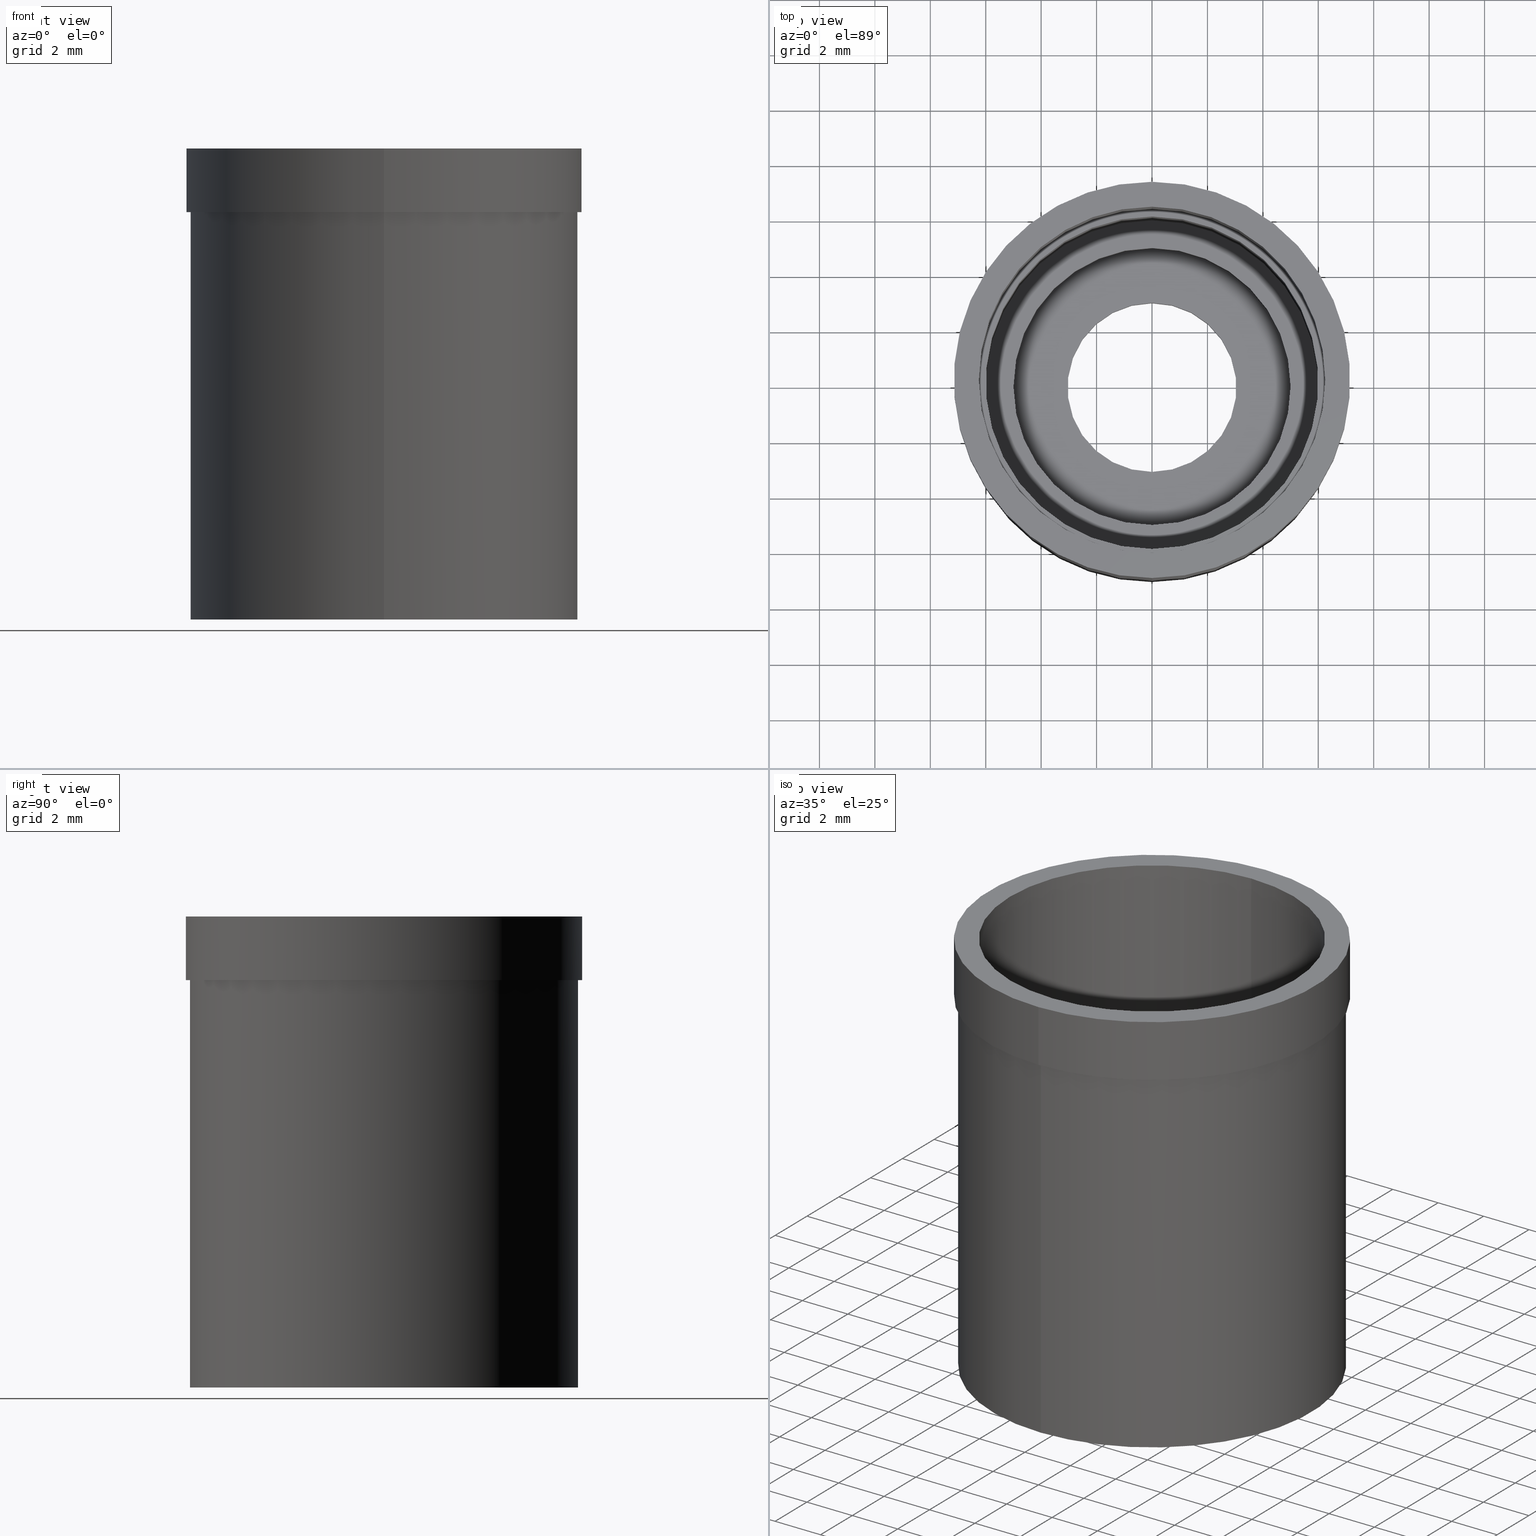
[diagram: canonical four-view strip — front | top / right | iso, engineering-drawing reading convention]
A machine part, canonical four-view strip (front | top / right | iso — engineering-drawing reading convention). The complete STEP part file that produces these views, byte-faithful:
ISO-10303-21;
HEADER;
FILE_DESCRIPTION((''),'2;1');
FILE_NAME('MGN6S','2017-10-18T',('ykawabe'),(''),
'CREO PARAMETRIC BY PTC INC, 2016380','CREO PARAMETRIC BY PTC INC, 2016380','');
FILE_SCHEMA(('AUTOMOTIVE_DESIGN { 1 0 10303 214 1 1 1 1 }'));
ENDSEC;
DATA;
#17=DIRECTION('',(0.E0,0.E0,1.E0));
#18=VECTOR('',#17,6.E0);
#19=CARTESIAN_POINT('',(0.E0,-6.25E0,-6.E0));
#20=LINE('',#19,#18);
#21=DRAUGHTING_PRE_DEFINED_CURVE_FONT('continuous');
#22=CURVE_STYLE('',#21,POSITIVE_LENGTH_MEASURE(2.E-2),#3);
#23=PRESENTATION_STYLE_ASSIGNMENT((#22));
#24=STYLED_ITEM('',(#23),#20);
#25=DIRECTION('',(0.E0,0.E0,1.E0));
#26=VECTOR('',#25,6.E0);
#27=CARTESIAN_POINT('',(0.E0,6.25E0,-6.E0));
#28=LINE('',#27,#26);
#29=CURVE_STYLE('',#21,POSITIVE_LENGTH_MEASURE(2.E-2),#3);
#30=PRESENTATION_STYLE_ASSIGNMENT((#29));
#31=STYLED_ITEM('',(#30),#28);
#32=CARTESIAN_POINT('',(0.E0,0.E0,1.776356839400E-14));
#33=DIRECTION('',(0.E0,0.E0,-1.E0));
#34=DIRECTION('',(0.E0,-1.E0,0.E0));
#35=AXIS2_PLACEMENT_3D('',#32,#33,#34);
#37=CURVE_STYLE('',#21,POSITIVE_LENGTH_MEASURE(2.E-2),#3);
#38=PRESENTATION_STYLE_ASSIGNMENT((#37));
#39=STYLED_ITEM('',(#38),#36);
#40=CARTESIAN_POINT('',(0.E0,0.E0,1.776356839400E-14));
#41=DIRECTION('',(0.E0,0.E0,-1.E0));
#42=DIRECTION('',(0.E0,1.E0,0.E0));
#43=AXIS2_PLACEMENT_3D('',#40,#41,#42);
#45=CURVE_STYLE('',#21,POSITIVE_LENGTH_MEASURE(2.E-2),#3);
#46=PRESENTATION_STYLE_ASSIGNMENT((#45));
#47=STYLED_ITEM('',(#46),#44);
#48=CARTESIAN_POINT('',(0.E0,0.E0,1.776356839400E-14));
#49=DIRECTION('',(0.E0,0.E0,1.E0));
#50=DIRECTION('',(0.E0,-1.E0,0.E0));
#51=AXIS2_PLACEMENT_3D('',#48,#49,#50);
#53=CURVE_STYLE('',#21,POSITIVE_LENGTH_MEASURE(2.E-2),#3);
#54=PRESENTATION_STYLE_ASSIGNMENT((#53));
#55=STYLED_ITEM('',(#54),#52);
#56=CARTESIAN_POINT('',(0.E0,0.E0,1.776356839400E-14));
#57=DIRECTION('',(0.E0,0.E0,1.E0));
#58=DIRECTION('',(0.E0,1.E0,0.E0));
#59=AXIS2_PLACEMENT_3D('',#56,#57,#58);
#61=CURVE_STYLE('',#21,POSITIVE_LENGTH_MEASURE(2.E-2),#3);
#62=PRESENTATION_STYLE_ASSIGNMENT((#61));
#63=STYLED_ITEM('',(#62),#60);
#64=DIRECTION('',(0.E0,0.E0,-1.E0));
#65=VECTOR('',#64,2.3E0);
#66=CARTESIAN_POINT('',(0.E0,-7.15E0,0.E0));
#67=LINE('',#66,#65);
#68=CURVE_STYLE('',#21,POSITIVE_LENGTH_MEASURE(2.E-2),#3);
#69=PRESENTATION_STYLE_ASSIGNMENT((#68));
#70=STYLED_ITEM('',(#69),#67);
#71=DIRECTION('',(0.E0,0.E0,-1.E0));
#72=VECTOR('',#71,2.3E0);
#73=CARTESIAN_POINT('',(0.E0,7.15E0,0.E0));
#74=LINE('',#73,#72);
#75=CURVE_STYLE('',#21,POSITIVE_LENGTH_MEASURE(2.E-2),#3);
#76=PRESENTATION_STYLE_ASSIGNMENT((#75));
#77=STYLED_ITEM('',(#76),#74);
#78=CARTESIAN_POINT('',(0.E0,0.E0,-2.3E0));
#79=DIRECTION('',(0.E0,0.E0,1.E0));
#80=DIRECTION('',(0.E0,-1.E0,0.E0));
#81=AXIS2_PLACEMENT_3D('',#78,#79,#80);
#83=CURVE_STYLE('',#21,POSITIVE_LENGTH_MEASURE(2.E-2),#3);
#84=PRESENTATION_STYLE_ASSIGNMENT((#83));
#85=STYLED_ITEM('',(#84),#82);
#86=CARTESIAN_POINT('',(0.E0,0.E0,-2.3E0));
#87=DIRECTION('',(0.E0,0.E0,1.E0));
#88=DIRECTION('',(0.E0,1.E0,0.E0));
#89=AXIS2_PLACEMENT_3D('',#86,#87,#88);
#91=CURVE_STYLE('',#21,POSITIVE_LENGTH_MEASURE(2.E-2),#3);
#92=PRESENTATION_STYLE_ASSIGNMENT((#91));
#93=STYLED_ITEM('',(#92),#90);
#94=CARTESIAN_POINT('',(0.E0,0.E0,-2.3E0));
#95=DIRECTION('',(0.E0,0.E0,-1.E0));
#96=DIRECTION('',(0.E0,-1.E0,0.E0));
#97=AXIS2_PLACEMENT_3D('',#94,#95,#96);
#99=CURVE_STYLE('',#21,POSITIVE_LENGTH_MEASURE(2.E-2),#3);
#100=PRESENTATION_STYLE_ASSIGNMENT((#99));
#101=STYLED_ITEM('',(#100),#98);
#102=CARTESIAN_POINT('',(0.E0,0.E0,-2.3E0));
#103=DIRECTION('',(0.E0,0.E0,-1.E0));
#104=DIRECTION('',(0.E0,1.E0,0.E0));
#105=AXIS2_PLACEMENT_3D('',#102,#103,#104);
#107=CURVE_STYLE('',#21,POSITIVE_LENGTH_MEASURE(2.E-2),#3);
#108=PRESENTATION_STYLE_ASSIGNMENT((#107));
#109=STYLED_ITEM('',(#108),#106);
#110=DIRECTION('',(0.E0,0.E0,-1.E0));
#111=VECTOR('',#110,1.47E1);
#112=CARTESIAN_POINT('',(0.E0,-7.E0,-2.3E0));
#113=LINE('',#112,#111);
#114=CURVE_STYLE('',#21,POSITIVE_LENGTH_MEASURE(2.E-2),#3);
#115=PRESENTATION_STYLE_ASSIGNMENT((#114));
#116=STYLED_ITEM('',(#115),#113);
#117=DIRECTION('',(0.E0,0.E0,-1.E0));
#118=VECTOR('',#117,1.47E1);
#119=CARTESIAN_POINT('',(0.E0,7.E0,-2.3E0));
#120=LINE('',#119,#118);
#121=CURVE_STYLE('',#21,POSITIVE_LENGTH_MEASURE(2.E-2),#3);
#122=PRESENTATION_STYLE_ASSIGNMENT((#121));
#123=STYLED_ITEM('',(#122),#120);
#124=CARTESIAN_POINT('',(0.E0,0.E0,-1.7E1));
#125=DIRECTION('',(0.E0,0.E0,1.E0));
#126=DIRECTION('',(0.E0,-1.E0,0.E0));
#127=AXIS2_PLACEMENT_3D('',#124,#125,#126);
#129=CURVE_STYLE('',#21,POSITIVE_LENGTH_MEASURE(2.E-2),#3);
#130=PRESENTATION_STYLE_ASSIGNMENT((#129));
#131=STYLED_ITEM('',(#130),#128);
#132=CARTESIAN_POINT('',(0.E0,0.E0,-1.7E1));
#133=DIRECTION('',(0.E0,0.E0,1.E0));
#134=DIRECTION('',(0.E0,1.E0,0.E0));
#135=AXIS2_PLACEMENT_3D('',#132,#133,#134);
#137=CURVE_STYLE('',#21,POSITIVE_LENGTH_MEASURE(2.E-2),#3);
#138=PRESENTATION_STYLE_ASSIGNMENT((#137));
#139=STYLED_ITEM('',(#138),#136);
#140=CARTESIAN_POINT('',(0.E0,0.E0,-1.7E1));
#141=DIRECTION('',(0.E0,0.E0,-1.E0));
#142=DIRECTION('',(0.E0,-1.E0,0.E0));
#143=AXIS2_PLACEMENT_3D('',#140,#141,#142);
#145=CURVE_STYLE('',#21,POSITIVE_LENGTH_MEASURE(2.E-2),#3);
#146=PRESENTATION_STYLE_ASSIGNMENT((#145));
#147=STYLED_ITEM('',(#146),#144);
#148=CARTESIAN_POINT('',(0.E0,0.E0,-1.7E1));
#149=DIRECTION('',(0.E0,0.E0,-1.E0));
#150=DIRECTION('',(0.E0,1.E0,0.E0));
#151=AXIS2_PLACEMENT_3D('',#148,#149,#150);
#153=CURVE_STYLE('',#21,POSITIVE_LENGTH_MEASURE(2.E-2),#3);
#154=PRESENTATION_STYLE_ASSIGNMENT((#153));
#155=STYLED_ITEM('',(#154),#152);
#156=DIRECTION('',(0.E0,7.071067811865E-1,7.071067811865E-1));
#157=VECTOR('',#156,7.071067811865E-1);
#158=CARTESIAN_POINT('',(0.E0,-3.55E0,-1.7E1));
#159=LINE('',#158,#157);
#160=CURVE_STYLE('',#21,POSITIVE_LENGTH_MEASURE(2.E-2),#3);
#161=PRESENTATION_STYLE_ASSIGNMENT((#160));
#162=STYLED_ITEM('',(#161),#159);
#163=CARTESIAN_POINT('',(0.E0,0.E0,-1.65E1));
#164=DIRECTION('',(0.E0,0.E0,-1.E0));
#165=DIRECTION('',(0.E0,-1.E0,0.E0));
#166=AXIS2_PLACEMENT_3D('',#163,#164,#165);
#168=CURVE_STYLE('',#21,POSITIVE_LENGTH_MEASURE(2.E-2),#3);
#169=PRESENTATION_STYLE_ASSIGNMENT((#168));
#170=STYLED_ITEM('',(#169),#167);
#171=DIRECTION('',(0.E0,-7.071067811865E-1,7.071067811865E-1));
#172=VECTOR('',#171,7.071067811865E-1);
#173=CARTESIAN_POINT('',(0.E0,3.55E0,-1.7E1));
#174=LINE('',#173,#172);
#175=CURVE_STYLE('',#21,POSITIVE_LENGTH_MEASURE(2.E-2),#3);
#176=PRESENTATION_STYLE_ASSIGNMENT((#175));
#177=STYLED_ITEM('',(#176),#174);
#178=CARTESIAN_POINT('',(0.E0,0.E0,-1.65E1));
#179=DIRECTION('',(0.E0,0.E0,-1.E0));
#180=DIRECTION('',(0.E0,1.E0,0.E0));
#181=AXIS2_PLACEMENT_3D('',#178,#179,#180);
#183=CURVE_STYLE('',#21,POSITIVE_LENGTH_MEASURE(2.E-2),#3);
#184=PRESENTATION_STYLE_ASSIGNMENT((#183));
#185=STYLED_ITEM('',(#184),#182);
#186=DIRECTION('',(0.E0,0.E0,1.E0));
#187=VECTOR('',#186,1.E0);
#188=CARTESIAN_POINT('',(0.E0,3.05E0,-1.65E1));
#189=LINE('',#188,#187);
#190=CURVE_STYLE('',#21,POSITIVE_LENGTH_MEASURE(2.E-2),#3);
#191=PRESENTATION_STYLE_ASSIGNMENT((#190));
#192=STYLED_ITEM('',(#191),#189);
#193=DIRECTION('',(0.E0,0.E0,1.E0));
#194=VECTOR('',#193,1.E0);
#195=CARTESIAN_POINT('',(0.E0,-3.05E0,-1.65E1));
#196=LINE('',#195,#194);
#197=CURVE_STYLE('',#21,POSITIVE_LENGTH_MEASURE(2.E-2),#3);
#198=PRESENTATION_STYLE_ASSIGNMENT((#197));
#199=STYLED_ITEM('',(#198),#196);
#200=CARTESIAN_POINT('',(0.E0,0.E0,-1.55E1));
#201=DIRECTION('',(0.E0,0.E0,-1.E0));
#202=DIRECTION('',(0.E0,-1.E0,0.E0));
#203=AXIS2_PLACEMENT_3D('',#200,#201,#202);
#205=CURVE_STYLE('',#21,POSITIVE_LENGTH_MEASURE(2.E-2),#3);
#206=PRESENTATION_STYLE_ASSIGNMENT((#205));
#207=STYLED_ITEM('',(#206),#204);
#208=CARTESIAN_POINT('',(0.E0,0.E0,-1.55E1));
#209=DIRECTION('',(0.E0,0.E0,-1.E0));
#210=DIRECTION('',(0.E0,1.E0,0.E0));
#211=AXIS2_PLACEMENT_3D('',#208,#209,#210);
#213=CURVE_STYLE('',#21,POSITIVE_LENGTH_MEASURE(2.E-2),#3);
#214=PRESENTATION_STYLE_ASSIGNMENT((#213));
#215=STYLED_ITEM('',(#214),#212);
#216=CARTESIAN_POINT('',(0.E0,0.E0,-1.55E1));
#217=DIRECTION('',(0.E0,0.E0,1.E0));
#218=DIRECTION('',(0.E0,-1.E0,0.E0));
#219=AXIS2_PLACEMENT_3D('',#216,#217,#218);
#221=CURVE_STYLE('',#21,POSITIVE_LENGTH_MEASURE(2.E-2),#3);
#222=PRESENTATION_STYLE_ASSIGNMENT((#221));
#223=STYLED_ITEM('',(#222),#220);
#224=CARTESIAN_POINT('',(0.E0,0.E0,-1.55E1));
#225=DIRECTION('',(0.E0,0.E0,1.E0));
#226=DIRECTION('',(0.E0,1.E0,0.E0));
#227=AXIS2_PLACEMENT_3D('',#224,#225,#226);
#229=CURVE_STYLE('',#21,POSITIVE_LENGTH_MEASURE(2.E-2),#3);
#230=PRESENTATION_STYLE_ASSIGNMENT((#229));
#231=STYLED_ITEM('',(#230),#228);
#232=DIRECTION('',(0.E0,0.E0,1.E0));
#233=VECTOR('',#232,1.8E0);
#234=CARTESIAN_POINT('',(0.E0,-5.E0,-1.55E1));
#235=LINE('',#234,#233);
#236=CURVE_STYLE('',#21,POSITIVE_LENGTH_MEASURE(2.E-2),#3);
#237=PRESENTATION_STYLE_ASSIGNMENT((#236));
#238=STYLED_ITEM('',(#237),#235);
#239=DIRECTION('',(0.E0,0.E0,1.E0));
#240=VECTOR('',#239,1.8E0);
#241=CARTESIAN_POINT('',(0.E0,5.E0,-1.55E1));
#242=LINE('',#241,#240);
#243=CURVE_STYLE('',#21,POSITIVE_LENGTH_MEASURE(2.E-2),#3);
#244=PRESENTATION_STYLE_ASSIGNMENT((#243));
#245=STYLED_ITEM('',(#244),#242);
#246=CARTESIAN_POINT('',(0.E0,0.E0,-1.37E1));
#247=DIRECTION('',(0.E0,0.E0,-1.E0));
#248=DIRECTION('',(0.E0,-1.E0,0.E0));
#249=AXIS2_PLACEMENT_3D('',#246,#247,#248);
#251=CURVE_STYLE('',#21,POSITIVE_LENGTH_MEASURE(2.E-2),#3);
#252=PRESENTATION_STYLE_ASSIGNMENT((#251));
#253=STYLED_ITEM('',(#252),#250);
#254=CARTESIAN_POINT('',(0.E0,0.E0,-1.37E1));
#255=DIRECTION('',(0.E0,0.E0,-1.E0));
#256=DIRECTION('',(0.E0,1.E0,0.E0));
#257=AXIS2_PLACEMENT_3D('',#254,#255,#256);
#259=CURVE_STYLE('',#21,POSITIVE_LENGTH_MEASURE(2.E-2),#3);
#260=PRESENTATION_STYLE_ASSIGNMENT((#259));
#261=STYLED_ITEM('',(#260),#258);
#262=CARTESIAN_POINT('',(0.E0,0.E0,-1.37E1));
#263=DIRECTION('',(0.E0,0.E0,1.E0));
#264=DIRECTION('',(0.E0,-1.E0,0.E0));
#265=AXIS2_PLACEMENT_3D('',#262,#263,#264);
#267=CURVE_STYLE('',#21,POSITIVE_LENGTH_MEASURE(2.E-2),#3);
#268=PRESENTATION_STYLE_ASSIGNMENT((#267));
#269=STYLED_ITEM('',(#268),#266);
#270=CARTESIAN_POINT('',(0.E0,0.E0,-1.37E1));
#271=DIRECTION('',(0.E0,0.E0,1.E0));
#272=DIRECTION('',(0.E0,1.E0,0.E0));
#273=AXIS2_PLACEMENT_3D('',#270,#271,#272);
#275=CURVE_STYLE('',#21,POSITIVE_LENGTH_MEASURE(2.E-2),#3);
#276=PRESENTATION_STYLE_ASSIGNMENT((#275));
#277=STYLED_ITEM('',(#276),#274);
#278=DIRECTION('',(0.E0,0.E0,1.E0));
#279=VECTOR('',#278,7.7E0);
#280=CARTESIAN_POINT('',(0.E0,-6.E0,-1.37E1));
#281=LINE('',#280,#279);
#282=CURVE_STYLE('',#21,POSITIVE_LENGTH_MEASURE(2.E-2),#3);
#283=PRESENTATION_STYLE_ASSIGNMENT((#282));
#284=STYLED_ITEM('',(#283),#281);
#285=DIRECTION('',(0.E0,0.E0,1.E0));
#286=VECTOR('',#285,7.7E0);
#287=CARTESIAN_POINT('',(0.E0,6.E0,-1.37E1));
#288=LINE('',#287,#286);
#289=CURVE_STYLE('',#21,POSITIVE_LENGTH_MEASURE(2.E-2),#3);
#290=PRESENTATION_STYLE_ASSIGNMENT((#289));
#291=STYLED_ITEM('',(#290),#288);
#292=CARTESIAN_POINT('',(0.E0,0.E0,-6.E0));
#293=DIRECTION('',(0.E0,0.E0,-1.E0));
#294=DIRECTION('',(0.E0,-1.E0,0.E0));
#295=AXIS2_PLACEMENT_3D('',#292,#293,#294);
#297=CURVE_STYLE('',#21,POSITIVE_LENGTH_MEASURE(2.E-2),#3);
#298=PRESENTATION_STYLE_ASSIGNMENT((#297));
#299=STYLED_ITEM('',(#298),#296);
#300=CARTESIAN_POINT('',(0.E0,0.E0,-6.E0));
#301=DIRECTION('',(0.E0,0.E0,-1.E0));
#302=DIRECTION('',(0.E0,1.E0,0.E0));
#303=AXIS2_PLACEMENT_3D('',#300,#301,#302);
#305=CURVE_STYLE('',#21,POSITIVE_LENGTH_MEASURE(2.E-2),#3);
#306=PRESENTATION_STYLE_ASSIGNMENT((#305));
#307=STYLED_ITEM('',(#306),#304);
#308=CARTESIAN_POINT('',(0.E0,0.E0,-6.E0));
#309=DIRECTION('',(0.E0,0.E0,1.E0));
#310=DIRECTION('',(0.E0,-1.E0,0.E0));
#311=AXIS2_PLACEMENT_3D('',#308,#309,#310);
#313=CURVE_STYLE('',#21,POSITIVE_LENGTH_MEASURE(2.E-2),#3);
#314=PRESENTATION_STYLE_ASSIGNMENT((#313));
#315=STYLED_ITEM('',(#314),#312);
#316=CARTESIAN_POINT('',(0.E0,0.E0,-6.E0));
#317=DIRECTION('',(0.E0,0.E0,1.E0));
#318=DIRECTION('',(0.E0,1.E0,0.E0));
#319=AXIS2_PLACEMENT_3D('',#316,#317,#318);
#321=CURVE_STYLE('',#21,POSITIVE_LENGTH_MEASURE(2.E-2),#3);
#322=PRESENTATION_STYLE_ASSIGNMENT((#321));
#323=STYLED_ITEM('',(#322),#320);
#324=CARTESIAN_POINT('',(0.E0,6.25E0,-6.E0));
#325=CARTESIAN_POINT('',(0.E0,6.25E0,0.E0));
#326=VERTEX_POINT('',#324);
#327=VERTEX_POINT('',#325);
#328=CARTESIAN_POINT('',(0.E0,-6.25E0,-6.E0));
#329=VERTEX_POINT('',#328);
#330=CARTESIAN_POINT('',(0.E0,-6.25E0,0.E0));
#331=VERTEX_POINT('',#330);
#332=CARTESIAN_POINT('',(0.E0,-7.15E0,1.776356839400E-14));
#333=CARTESIAN_POINT('',(0.E0,7.15E0,1.776356839400E-14));
#334=VERTEX_POINT('',#332);
#335=VERTEX_POINT('',#333);
#336=CARTESIAN_POINT('',(0.E0,7.15E0,-2.3E0));
#337=VERTEX_POINT('',#336);
#338=CARTESIAN_POINT('',(0.E0,-7.15E0,-2.3E0));
#339=VERTEX_POINT('',#338);
#340=CARTESIAN_POINT('',(0.E0,-7.E0,-2.3E0));
#341=CARTESIAN_POINT('',(0.E0,7.E0,-2.3E0));
#342=VERTEX_POINT('',#340);
#343=VERTEX_POINT('',#341);
#344=CARTESIAN_POINT('',(0.E0,7.E0,-1.7E1));
#345=VERTEX_POINT('',#344);
#346=CARTESIAN_POINT('',(0.E0,-7.E0,-1.7E1));
#347=VERTEX_POINT('',#346);
#348=CARTESIAN_POINT('',(0.E0,-3.55E0,-1.7E1));
#349=CARTESIAN_POINT('',(0.E0,3.55E0,-1.7E1));
#350=VERTEX_POINT('',#348);
#351=VERTEX_POINT('',#349);
#352=CARTESIAN_POINT('',(0.E0,3.05E0,-1.65E1));
#353=VERTEX_POINT('',#352);
#354=CARTESIAN_POINT('',(0.E0,-3.05E0,-1.65E1));
#355=VERTEX_POINT('',#354);
#356=CARTESIAN_POINT('',(0.E0,3.05E0,-1.55E1));
#357=VERTEX_POINT('',#356);
#358=CARTESIAN_POINT('',(0.E0,-3.05E0,-1.55E1));
#359=VERTEX_POINT('',#358);
#360=CARTESIAN_POINT('',(0.E0,-5.E0,-1.55E1));
#361=CARTESIAN_POINT('',(0.E0,5.E0,-1.55E1));
#362=VERTEX_POINT('',#360);
#363=VERTEX_POINT('',#361);
#364=CARTESIAN_POINT('',(0.E0,5.E0,-1.37E1));
#365=VERTEX_POINT('',#364);
#366=CARTESIAN_POINT('',(0.E0,-5.E0,-1.37E1));
#367=VERTEX_POINT('',#366);
#368=CARTESIAN_POINT('',(0.E0,-6.E0,-1.37E1));
#369=CARTESIAN_POINT('',(0.E0,6.E0,-1.37E1));
#370=VERTEX_POINT('',#368);
#371=VERTEX_POINT('',#369);
#372=CARTESIAN_POINT('',(0.E0,6.E0,-6.E0));
#373=VERTEX_POINT('',#372);
#374=CARTESIAN_POINT('',(0.E0,-6.E0,-6.E0));
#375=VERTEX_POINT('',#374);
#376=CARTESIAN_POINT('',(0.E0,0.E0,-1.785E1));
#377=DIRECTION('',(0.E0,0.E0,1.E0));
#378=DIRECTION('',(0.E0,1.E0,0.E0));
#379=AXIS2_PLACEMENT_3D('',#376,#377,#378);
#380=CYLINDRICAL_SURFACE('',#379,6.25E0);
#382=ORIENTED_EDGE('',*,*,#381,.F.);
#384=ORIENTED_EDGE('',*,*,#383,.F.);
#386=ORIENTED_EDGE('',*,*,#385,.T.);
#388=ORIENTED_EDGE('',*,*,#387,.F.);
#389=EDGE_LOOP('',(#382,#384,#386,#388));
#390=FACE_OUTER_BOUND('',#389,.F.);
#392=CARTESIAN_POINT('',(0.E0,0.E0,-1.785E1));
#393=DIRECTION('',(0.E0,0.E0,1.E0));
#394=DIRECTION('',(0.E0,1.E0,0.E0));
#395=AXIS2_PLACEMENT_3D('',#392,#393,#394);
#396=CYLINDRICAL_SURFACE('',#395,6.25E0);
#397=ORIENTED_EDGE('',*,*,#381,.T.);
#399=ORIENTED_EDGE('',*,*,#398,.F.);
#400=ORIENTED_EDGE('',*,*,#385,.F.);
#402=ORIENTED_EDGE('',*,*,#401,.F.);
#403=EDGE_LOOP('',(#397,#399,#400,#402));
#404=FACE_OUTER_BOUND('',#403,.F.);
#406=CARTESIAN_POINT('',(0.E0,0.E0,0.E0));
#407=DIRECTION('',(0.E0,0.E0,1.E0));
#408=DIRECTION('',(0.E0,1.E0,0.E0));
#409=AXIS2_PLACEMENT_3D('',#406,#407,#408);
#410=PLANE('',#409);
#412=ORIENTED_EDGE('',*,*,#411,.T.);
#414=ORIENTED_EDGE('',*,*,#413,.T.);
#415=EDGE_LOOP('',(#412,#414));
#416=FACE_OUTER_BOUND('',#415,.F.);
#417=ORIENTED_EDGE('',*,*,#398,.T.);
#418=ORIENTED_EDGE('',*,*,#387,.T.);
#419=EDGE_LOOP('',(#417,#418));
#420=FACE_BOUND('',#419,.F.);
#422=CARTESIAN_POINT('',(0.E0,0.E0,-1.785E1));
#423=DIRECTION('',(0.E0,0.E0,1.E0));
#424=DIRECTION('',(0.E0,1.E0,0.E0));
#425=AXIS2_PLACEMENT_3D('',#422,#423,#424);
#426=CYLINDRICAL_SURFACE('',#425,7.15E0);
#428=ORIENTED_EDGE('',*,*,#427,.F.);
#429=ORIENTED_EDGE('',*,*,#411,.F.);
#431=ORIENTED_EDGE('',*,*,#430,.T.);
#433=ORIENTED_EDGE('',*,*,#432,.F.);
#434=EDGE_LOOP('',(#428,#429,#431,#433));
#435=FACE_OUTER_BOUND('',#434,.F.);
#437=CARTESIAN_POINT('',(0.E0,0.E0,-1.785E1));
#438=DIRECTION('',(0.E0,0.E0,1.E0));
#439=DIRECTION('',(0.E0,1.E0,0.E0));
#440=AXIS2_PLACEMENT_3D('',#437,#438,#439);
#441=CYLINDRICAL_SURFACE('',#440,7.15E0);
#442=ORIENTED_EDGE('',*,*,#427,.T.);
#444=ORIENTED_EDGE('',*,*,#443,.F.);
#445=ORIENTED_EDGE('',*,*,#430,.F.);
#446=ORIENTED_EDGE('',*,*,#413,.F.);
#447=EDGE_LOOP('',(#442,#444,#445,#446));
#448=FACE_OUTER_BOUND('',#447,.F.);
#450=CARTESIAN_POINT('',(0.E0,0.E0,-2.3E0));
#451=DIRECTION('',(0.E0,0.E0,1.E0));
#452=DIRECTION('',(0.E0,1.E0,0.E0));
#453=AXIS2_PLACEMENT_3D('',#450,#451,#452);
#454=PLANE('',#453);
#455=ORIENTED_EDGE('',*,*,#443,.T.);
#456=ORIENTED_EDGE('',*,*,#432,.T.);
#457=EDGE_LOOP('',(#455,#456));
#458=FACE_OUTER_BOUND('',#457,.F.);
#460=ORIENTED_EDGE('',*,*,#459,.T.);
#462=ORIENTED_EDGE('',*,*,#461,.T.);
#463=EDGE_LOOP('',(#460,#462));
#464=FACE_BOUND('',#463,.F.);
#466=CARTESIAN_POINT('',(0.E0,0.E0,-1.785E1));
#467=DIRECTION('',(0.E0,0.E0,1.E0));
#468=DIRECTION('',(0.E0,1.E0,0.E0));
#469=AXIS2_PLACEMENT_3D('',#466,#467,#468);
#470=CYLINDRICAL_SURFACE('',#469,7.E0);
#472=ORIENTED_EDGE('',*,*,#471,.F.);
#473=ORIENTED_EDGE('',*,*,#459,.F.);
#475=ORIENTED_EDGE('',*,*,#474,.T.);
#477=ORIENTED_EDGE('',*,*,#476,.F.);
#478=EDGE_LOOP('',(#472,#473,#475,#477));
#479=FACE_OUTER_BOUND('',#478,.F.);
#481=CARTESIAN_POINT('',(0.E0,0.E0,-1.785E1));
#482=DIRECTION('',(0.E0,0.E0,1.E0));
#483=DIRECTION('',(0.E0,1.E0,0.E0));
#484=AXIS2_PLACEMENT_3D('',#481,#482,#483);
#485=CYLINDRICAL_SURFACE('',#484,7.E0);
#486=ORIENTED_EDGE('',*,*,#471,.T.);
#488=ORIENTED_EDGE('',*,*,#487,.F.);
#489=ORIENTED_EDGE('',*,*,#474,.F.);
#490=ORIENTED_EDGE('',*,*,#461,.F.);
#491=EDGE_LOOP('',(#486,#488,#489,#490));
#492=FACE_OUTER_BOUND('',#491,.F.);
#494=CARTESIAN_POINT('',(0.E0,0.E0,-1.7E1));
#495=DIRECTION('',(0.E0,0.E0,1.E0));
#496=DIRECTION('',(0.E0,1.E0,0.E0));
#497=AXIS2_PLACEMENT_3D('',#494,#495,#496);
#498=PLANE('',#497);
#499=ORIENTED_EDGE('',*,*,#487,.T.);
#500=ORIENTED_EDGE('',*,*,#476,.T.);
#501=EDGE_LOOP('',(#499,#500));
#502=FACE_OUTER_BOUND('',#501,.F.);
#504=ORIENTED_EDGE('',*,*,#503,.T.);
#506=ORIENTED_EDGE('',*,*,#505,.T.);
#507=EDGE_LOOP('',(#504,#506));
#508=FACE_BOUND('',#507,.F.);
#510=CARTESIAN_POINT('',(0.E0,0.E0,-1.675E1));
#511=DIRECTION('',(0.E0,0.E0,-1.E0));
#512=DIRECTION('',(0.E0,-1.E0,0.E0));
#513=AXIS2_PLACEMENT_3D('',#510,#511,#512);
#514=CONICAL_SURFACE('',#513,3.3E0,4.5E1);
#516=ORIENTED_EDGE('',*,*,#515,.F.);
#517=ORIENTED_EDGE('',*,*,#503,.F.);
#519=ORIENTED_EDGE('',*,*,#518,.T.);
#521=ORIENTED_EDGE('',*,*,#520,.T.);
#522=EDGE_LOOP('',(#516,#517,#519,#521));
#523=FACE_OUTER_BOUND('',#522,.F.);
#525=CARTESIAN_POINT('',(0.E0,0.E0,-1.675E1));
#526=DIRECTION('',(0.E0,0.E0,-1.E0));
#527=DIRECTION('',(0.E0,-1.E0,0.E0));
#528=AXIS2_PLACEMENT_3D('',#525,#526,#527);
#529=CONICAL_SURFACE('',#528,3.3E0,4.5E1);
#530=ORIENTED_EDGE('',*,*,#515,.T.);
#532=ORIENTED_EDGE('',*,*,#531,.T.);
#533=ORIENTED_EDGE('',*,*,#518,.F.);
#534=ORIENTED_EDGE('',*,*,#505,.F.);
#535=EDGE_LOOP('',(#530,#532,#533,#534));
#536=FACE_OUTER_BOUND('',#535,.F.);
#538=CARTESIAN_POINT('',(0.E0,0.E0,-1.785E1));
#539=DIRECTION('',(0.E0,0.E0,1.E0));
#540=DIRECTION('',(0.E0,1.E0,0.E0));
#541=AXIS2_PLACEMENT_3D('',#538,#539,#540);
#542=CYLINDRICAL_SURFACE('',#541,3.05E0);
#544=ORIENTED_EDGE('',*,*,#543,.T.);
#546=ORIENTED_EDGE('',*,*,#545,.F.);
#548=ORIENTED_EDGE('',*,*,#547,.F.);
#549=ORIENTED_EDGE('',*,*,#531,.F.);
#550=EDGE_LOOP('',(#544,#546,#548,#549));
#551=FACE_OUTER_BOUND('',#550,.F.);
#553=CARTESIAN_POINT('',(0.E0,0.E0,-1.785E1));
#554=DIRECTION('',(0.E0,0.E0,1.E0));
#555=DIRECTION('',(0.E0,1.E0,0.E0));
#556=AXIS2_PLACEMENT_3D('',#553,#554,#555);
#557=CYLINDRICAL_SURFACE('',#556,3.05E0);
#558=ORIENTED_EDGE('',*,*,#543,.F.);
#559=ORIENTED_EDGE('',*,*,#520,.F.);
#560=ORIENTED_EDGE('',*,*,#547,.T.);
#562=ORIENTED_EDGE('',*,*,#561,.F.);
#563=EDGE_LOOP('',(#558,#559,#560,#562));
#564=FACE_OUTER_BOUND('',#563,.F.);
#566=CARTESIAN_POINT('',(0.E0,0.E0,-1.55E1));
#567=DIRECTION('',(0.E0,0.E0,1.E0));
#568=DIRECTION('',(0.E0,1.E0,0.E0));
#569=AXIS2_PLACEMENT_3D('',#566,#567,#568);
#570=PLANE('',#569);
#572=ORIENTED_EDGE('',*,*,#571,.T.);
#574=ORIENTED_EDGE('',*,*,#573,.T.);
#575=EDGE_LOOP('',(#572,#574));
#576=FACE_OUTER_BOUND('',#575,.F.);
#577=ORIENTED_EDGE('',*,*,#545,.T.);
#578=ORIENTED_EDGE('',*,*,#561,.T.);
#579=EDGE_LOOP('',(#577,#578));
#580=FACE_BOUND('',#579,.F.);
#582=CARTESIAN_POINT('',(0.E0,0.E0,-1.785E1));
#583=DIRECTION('',(0.E0,0.E0,1.E0));
#584=DIRECTION('',(0.E0,1.E0,0.E0));
#585=AXIS2_PLACEMENT_3D('',#582,#583,#584);
#586=CYLINDRICAL_SURFACE('',#585,5.E0);
#588=ORIENTED_EDGE('',*,*,#587,.F.);
#589=ORIENTED_EDGE('',*,*,#571,.F.);
#591=ORIENTED_EDGE('',*,*,#590,.T.);
#593=ORIENTED_EDGE('',*,*,#592,.F.);
#594=EDGE_LOOP('',(#588,#589,#591,#593));
#595=FACE_OUTER_BOUND('',#594,.F.);
#597=CARTESIAN_POINT('',(0.E0,0.E0,-1.785E1));
#598=DIRECTION('',(0.E0,0.E0,1.E0));
#599=DIRECTION('',(0.E0,1.E0,0.E0));
#600=AXIS2_PLACEMENT_3D('',#597,#598,#599);
#601=CYLINDRICAL_SURFACE('',#600,5.E0);
#602=ORIENTED_EDGE('',*,*,#587,.T.);
#604=ORIENTED_EDGE('',*,*,#603,.F.);
#605=ORIENTED_EDGE('',*,*,#590,.F.);
#606=ORIENTED_EDGE('',*,*,#573,.F.);
#607=EDGE_LOOP('',(#602,#604,#605,#606));
#608=FACE_OUTER_BOUND('',#607,.F.);
#610=CARTESIAN_POINT('',(0.E0,0.E0,-1.37E1));
#611=DIRECTION('',(0.E0,0.E0,1.E0));
#612=DIRECTION('',(0.E0,1.E0,0.E0));
#613=AXIS2_PLACEMENT_3D('',#610,#611,#612);
#614=PLANE('',#613);
#616=ORIENTED_EDGE('',*,*,#615,.T.);
#618=ORIENTED_EDGE('',*,*,#617,.T.);
#619=EDGE_LOOP('',(#616,#618));
#620=FACE_OUTER_BOUND('',#619,.F.);
#621=ORIENTED_EDGE('',*,*,#603,.T.);
#622=ORIENTED_EDGE('',*,*,#592,.T.);
#623=EDGE_LOOP('',(#621,#622));
#624=FACE_BOUND('',#623,.F.);
#626=CARTESIAN_POINT('',(0.E0,0.E0,-1.785E1));
#627=DIRECTION('',(0.E0,0.E0,1.E0));
#628=DIRECTION('',(0.E0,1.E0,0.E0));
#629=AXIS2_PLACEMENT_3D('',#626,#627,#628);
#630=CYLINDRICAL_SURFACE('',#629,6.E0);
#632=ORIENTED_EDGE('',*,*,#631,.F.);
#633=ORIENTED_EDGE('',*,*,#615,.F.);
#635=ORIENTED_EDGE('',*,*,#634,.T.);
#637=ORIENTED_EDGE('',*,*,#636,.F.);
#638=EDGE_LOOP('',(#632,#633,#635,#637));
#639=FACE_OUTER_BOUND('',#638,.F.);
#641=CARTESIAN_POINT('',(0.E0,0.E0,-1.785E1));
#642=DIRECTION('',(0.E0,0.E0,1.E0));
#643=DIRECTION('',(0.E0,1.E0,0.E0));
#644=AXIS2_PLACEMENT_3D('',#641,#642,#643);
#645=CYLINDRICAL_SURFACE('',#644,6.E0);
#646=ORIENTED_EDGE('',*,*,#631,.T.);
#648=ORIENTED_EDGE('',*,*,#647,.F.);
#649=ORIENTED_EDGE('',*,*,#634,.F.);
#650=ORIENTED_EDGE('',*,*,#617,.F.);
#651=EDGE_LOOP('',(#646,#648,#649,#650));
#652=FACE_OUTER_BOUND('',#651,.F.);
#654=CARTESIAN_POINT('',(0.E0,0.E0,-6.E0));
#655=DIRECTION('',(0.E0,0.E0,1.E0));
#656=DIRECTION('',(0.E0,1.E0,0.E0));
#657=AXIS2_PLACEMENT_3D('',#654,#655,#656);
#658=PLANE('',#657);
#659=ORIENTED_EDGE('',*,*,#383,.T.);
#660=ORIENTED_EDGE('',*,*,#401,.T.);
#661=EDGE_LOOP('',(#659,#660));
#662=FACE_OUTER_BOUND('',#661,.F.);
#663=ORIENTED_EDGE('',*,*,#647,.T.);
#664=ORIENTED_EDGE('',*,*,#636,.T.);
#665=EDGE_LOOP('',(#663,#664));
#666=FACE_BOUND('',#665,.F.);
#668=CLOSED_SHELL('',(#391,#405,#421,#436,#449,#465,#480,#493,#509,#524,#537,
#552,#565,#581,#596,#609,#625,#640,#653,#667));
#669=MANIFOLD_SOLID_BREP('',#668);
#670=FILL_AREA_STYLE_COLOUR('',#3);
#671=FILL_AREA_STYLE('',(#670));
#672=SURFACE_STYLE_FILL_AREA(#671);
#673=SURFACE_SIDE_STYLE('',(#672));
#674=SURFACE_STYLE_USAGE(.BOTH.,#673);
#675=PRESENTATION_STYLE_ASSIGNMENT((#674));
#16=STYLED_ITEM('',(#675),#669);
#676=CARTESIAN_POINT('',(0.E0,0.E0,0.E0));
#677=DIRECTION('',(0.E0,0.E0,1.E0));
#678=DIRECTION('',(1.E0,0.E0,0.E0));
#679=AXIS2_PLACEMENT_3D('MGN6S',#676,#677,#678);
#680=CURVE_STYLE('',#21,POSITIVE_LENGTH_MEASURE(2.E-2),#6);
#681=PRESENTATION_STYLE_ASSIGNMENT((#680));
#682=STYLED_ITEM('',(#681),#679);
#683=CARTESIAN_POINT('',(0.E0,0.E0,-1.7E1));
#684=DIRECTION('',(0.E0,0.E0,1.E0));
#685=DIRECTION('',(1.E0,0.E0,0.E0));
#686=AXIS2_PLACEMENT_3D('CSW',#683,#684,#685);
#687=CURVE_STYLE('',#21,POSITIVE_LENGTH_MEASURE(2.E-2),#3);
#688=PRESENTATION_STYLE_ASSIGNMENT((#687));
#689=STYLED_ITEM('',(#688),#686);
#690=CARTESIAN_POINT('',(0.E0,0.E0,-1.55E1));
#691=DIRECTION('',(0.E0,0.E0,1.E0));
#692=DIRECTION('',(1.E0,0.E0,0.E0));
#693=AXIS2_PLACEMENT_3D('MCS',#690,#691,#692);
#694=CURVE_STYLE('',#21,POSITIVE_LENGTH_MEASURE(2.E-2),#3);
#695=PRESENTATION_STYLE_ASSIGNMENT((#694));
#696=STYLED_ITEM('',(#695),#693);
#697=CARTESIAN_POINT('',(0.E0,0.E0,0.E0));
#698=DIRECTION('',(0.E0,0.E0,1.E0));
#699=DIRECTION('',(1.E0,0.E0,0.E0));
#700=AXIS2_PLACEMENT_3D('PCS',#697,#698,#699);
#701=CURVE_STYLE('',#21,POSITIVE_LENGTH_MEASURE(2.E-2),#3);
#702=PRESENTATION_STYLE_ASSIGNMENT((#701));
#703=STYLED_ITEM('',(#702),#700);
#706=PLANE_ANGLE_MEASURE_WITH_UNIT(PLANE_ANGLE_MEASURE(1.745329251994E-2),#705);
#707=(CONVERSION_BASED_UNIT('DEGREE',#706)NAMED_UNIT(*)PLANE_ANGLE_UNIT());
#709=UNCERTAINTY_MEASURE_WITH_UNIT(LENGTH_MEASURE(2.641825434651E-3),#704,
'distance_accuracy_value',
'Maximum model space distance between geometric entities at asserted connectivities');
#713=CARTESIAN_POINT('',(0.E0,0.E0,0.E0));
#714=DIRECTION('',(0.E0,0.E0,1.E0));
#715=DIRECTION('',(1.E0,0.E0,0.E0));
#718=SHAPE_REPRESENTATION_RELATIONSHIP('','',#717,#711);
#719=CONSTRUCTIVE_GEOMETRY_REPRESENTATION_RELATIONSHIP('','',#717,#712);
#720=MECHANICAL_DESIGN_GEOMETRIC_PRESENTATION_REPRESENTATION('',(#24,#31,#39,
#47,#55,#63,#70,#77,#85,#93,#101,#109,#116,#123,#131,#139,#147,#155,#162,#170,
#177,#185,#192,#199,#207,#215,#223,#231,#238,#245,#253,#261,#269,#277,#284,#291,
#299,#307,#315,#323,#16,#682,#689,#696,#703),#710);
#721=APPLICATION_CONTEXT('automotive_design');
#722=APPLICATION_PROTOCOL_DEFINITION('international standard',
'automotive_design',2001,#721);
#723=PRODUCT_DEFINITION_CONTEXT('part definition',#721,'design');
#724=PRODUCT_CONTEXT('',#721,'mechanical');
#725=PRODUCT('MGN6S','MGN6S','NOT SPECIFIED',(#724));
#726=PRODUCT_DEFINITION_FORMATION('1','LAST_VERSION',#725);
#734=DERIVED_UNIT_ELEMENT(#733,2.E0);
#735=DERIVED_UNIT((#734));
#736=MEASURE_REPRESENTATION_ITEM('surface area measure',AREA_MEASURE(
1.618538811133E3),#735);
#741=DERIVED_UNIT_ELEMENT(#740,3.E0);
#742=DERIVED_UNIT((#741));
#743=MEASURE_REPRESENTATION_ITEM('volume measure',VOLUME_MEASURE(
8.373878566472E2),#742);
#747=CARTESIAN_POINT('centre point',(-4.287154942108E-11,0.E0,
-1.033687523205E1));
#752=DERIVED_UNIT_ELEMENT(#751,2.E0);
#753=DERIVED_UNIT((#752));
#754=MEASURE_REPRESENTATION_ITEM('surface area measure',AREA_MEASURE(
1.618538811133E3),#753);
#759=DERIVED_UNIT_ELEMENT(#758,3.E0);
#760=DERIVED_UNIT((#759));
#761=MEASURE_REPRESENTATION_ITEM('volume measure',VOLUME_MEASURE(
8.373878566472E2),#760);
#765=CARTESIAN_POINT('centre point',(-4.287154942108E-11,0.E0,
-1.033687523205E1));
#770=PRODUCT_RELATED_PRODUCT_CATEGORY('part','',(#725));
#772=GENERAL_PROPERTY('','DESCRIPTION','user defined attribute');
#773=GENERAL_PROPERTY_ASSOCIATION('user defined attribute','',#772,#771);
#774=DESCRIPTIVE_REPRESENTATION_ITEM('DESCRIPTION','');
#778=GENERAL_PROPERTY('','MODELED_BY','user defined attribute');
#779=GENERAL_PROPERTY_ASSOCIATION('user defined attribute','',#778,#777);
#780=DESCRIPTIVE_REPRESENTATION_ITEM('MODELED_BY','');
#784=GENERAL_PROPERTY('','DXF_NAME','user defined attribute');
#785=GENERAL_PROPERTY_ASSOCIATION('user defined attribute','',#784,#783);
#786=DESCRIPTIVE_REPRESENTATION_ITEM('DXF_NAME','MGN6S');
#790=GENERAL_PROPERTY('','CCWS','user defined attribute');
#791=GENERAL_PROPERTY_ASSOCIATION('user defined attribute','',#790,#789);
#792=DESCRIPTIVE_REPRESENTATION_ITEM('CCWS','');
#796=GENERAL_PROPERTY('','DIM_A','user defined attribute');
#797=GENERAL_PROPERTY_ASSOCIATION('user defined attribute','',#796,#795);
#798=VALUE_REPRESENTATION_ITEM('DIM_A',COUNT_MEASURE(17));
#801=DESCRIPTIVE_REPRESENTATION_ITEM('attribute description','Integer');
#806=GENERAL_PROPERTY('','DIM_B','user defined attribute');
#807=GENERAL_PROPERTY_ASSOCIATION('user defined attribute','',#806,#805);
#808=VALUE_REPRESENTATION_ITEM('DIM_B',NUMERIC_MEASURE(2.3E0));
#811=DESCRIPTIVE_REPRESENTATION_ITEM('attribute description','Real Number');
#816=GENERAL_PROPERTY('','DIM_C','user defined attribute');
#817=GENERAL_PROPERTY_ASSOCIATION('user defined attribute','',#816,#815);
#818=VALUE_REPRESENTATION_ITEM('DIM_C',NUMERIC_MEASURE(1.43E1));
#821=DESCRIPTIVE_REPRESENTATION_ITEM('attribute description','Real Number');
#826=GENERAL_PROPERTY('','DIM_D','user defined attribute');
#827=GENERAL_PROPERTY_ASSOCIATION('user defined attribute','',#826,#825);
#828=VALUE_REPRESENTATION_ITEM('DIM_D',COUNT_MEASURE(14));
#831=DESCRIPTIVE_REPRESENTATION_ITEM('attribute description','Integer');
#836=GENERAL_PROPERTY('','DIM_E','user defined attribute');
#837=GENERAL_PROPERTY_ASSOCIATION('user defined attribute','',#836,#835);
#838=VALUE_REPRESENTATION_ITEM('DIM_E',COUNT_MEASURE(10));
#841=DESCRIPTIVE_REPRESENTATION_ITEM('attribute description','Integer');
#846=GENERAL_PROPERTY('','DIM_F','user defined attribute');
#847=GENERAL_PROPERTY_ASSOCIATION('user defined attribute','',#846,#845);
#848=VALUE_REPRESENTATION_ITEM('DIM_F',NUMERIC_MEASURE(7.1E0));
#851=DESCRIPTIVE_REPRESENTATION_ITEM('attribute description','Real Number');
#856=GENERAL_PROPERTY('','DIM_H','user defined attribute');
#857=GENERAL_PROPERTY_ASSOCIATION('user defined attribute','',#856,#855);
#858=VALUE_REPRESENTATION_ITEM('DIM_H',NUMERIC_MEASURE(6.1E0));
#861=DESCRIPTIVE_REPRESENTATION_ITEM('attribute description','Real Number');
#866=GENERAL_PROPERTY('','DIM_I','user defined attribute');
#867=GENERAL_PROPERTY_ASSOCIATION('user defined attribute','',#866,#865);
#868=VALUE_REPRESENTATION_ITEM('DIM_I',COUNT_MEASURE(11));
#871=DESCRIPTIVE_REPRESENTATION_ITEM('attribute description','Integer');
#876=GENERAL_PROPERTY('','DIM_J','user defined attribute');
#877=GENERAL_PROPERTY_ASSOCIATION('user defined attribute','',#876,#875);
#878=VALUE_REPRESENTATION_ITEM('DIM_J',NUMERIC_MEASURE(3.3E0));
#881=DESCRIPTIVE_REPRESENTATION_ITEM('attribute description','Real Number');
#886=GENERAL_PROPERTY('','DIM_K','user defined attribute');
#887=GENERAL_PROPERTY_ASSOCIATION('user defined attribute','',#886,#885);
#888=VALUE_REPRESENTATION_ITEM('DIM_K',NUMERIC_MEASURE(1.5E0));
#891=DESCRIPTIVE_REPRESENTATION_ITEM('attribute description','Real Number');
#896=GENERAL_PROPERTY('','DIM_L','user defined attribute');
#897=GENERAL_PROPERTY_ASSOCIATION('user defined attribute','',#896,#895);
#898=VALUE_REPRESENTATION_ITEM('DIM_L',NUMERIC_MEASURE(1.25E1));
#901=DESCRIPTIVE_REPRESENTATION_ITEM('attribute description','Real Number');
#906=GENERAL_PROPERTY('','DIM_M','user defined attribute');
#907=GENERAL_PROPERTY_ASSOCIATION('user defined attribute','',#906,#905);
#908=VALUE_REPRESENTATION_ITEM('DIM_M',COUNT_MEASURE(12));
#911=DESCRIPTIVE_REPRESENTATION_ITEM('attribute description','Integer');
#1=DRAUGHTING_PRE_DEFINED_COLOUR('green');
#2=COLOUR_RGB('',1.1E-2,1.2E-2,1.E0);
#3=COLOUR_RGB('',3.019607843137E-1,3.019607843137E-1,3.019607843137E-1);
#4=COLOUR_RGB('',4.1E-1,2.61589E-1,1.12848E-1);
#5=COLOUR_RGB('',5.04854E-1,1.5455E-2,1.5455E-2);
#6=COLOUR_RGB('',6.E-1,4.E-1,2.E-1);
#7=COLOUR_RGB('',6.40777E-1,6.40777E-1,6.40777E-1);
#8=COLOUR_RGB('',6.69062E-1,6.69903E-1,6.55217E-1);
#9=COLOUR_RGB('',6.952E-1,7.426E-1,7.9E-1);
#10=COLOUR_RGB('',9.21569E-1,7.05882E-1,4.70588E-1);
#11=DRAUGHTING_PRE_DEFINED_COLOUR('red');
#12=DRAUGHTING_PRE_DEFINED_COLOUR('yellow');
#13=COLOUR_RGB('',1.E0,1.E0,5.3E-1);
#14=COLOUR_RGB('',1.E0,1.E0,9.49E-1);
#15=DRAUGHTING_PRE_DEFINED_COLOUR('white');
#36=CIRCLE('',#35,7.15E0);
#44=CIRCLE('',#43,7.15E0);
#52=CIRCLE('',#51,6.25E0);
#60=CIRCLE('',#59,6.25E0);
#82=CIRCLE('',#81,7.15E0);
#90=CIRCLE('',#89,7.15E0);
#98=CIRCLE('',#97,7.E0);
#106=CIRCLE('',#105,7.E0);
#128=CIRCLE('',#127,7.E0);
#136=CIRCLE('',#135,7.E0);
#144=CIRCLE('',#143,3.55E0);
#152=CIRCLE('',#151,3.55E0);
#167=CIRCLE('',#166,3.05E0);
#182=CIRCLE('',#181,3.05E0);
#204=CIRCLE('',#203,5.E0);
#212=CIRCLE('',#211,5.E0);
#220=CIRCLE('',#219,3.05E0);
#228=CIRCLE('',#227,3.05E0);
#250=CIRCLE('',#249,6.E0);
#258=CIRCLE('',#257,6.E0);
#266=CIRCLE('',#265,5.E0);
#274=CIRCLE('',#273,5.E0);
#296=CIRCLE('',#295,6.25E0);
#304=CIRCLE('',#303,6.25E0);
#312=CIRCLE('',#311,6.E0);
#320=CIRCLE('',#319,6.E0);
#381=EDGE_CURVE('',#326,#327,#28,.T.);
#383=EDGE_CURVE('',#329,#326,#296,.T.);
#385=EDGE_CURVE('',#329,#331,#20,.T.);
#387=EDGE_CURVE('',#327,#331,#60,.T.);
#391=ADVANCED_FACE('',(#390),#380,.F.);
#398=EDGE_CURVE('',#331,#327,#52,.T.);
#401=EDGE_CURVE('',#326,#329,#304,.T.);
#405=ADVANCED_FACE('',(#404),#396,.F.);
#411=EDGE_CURVE('',#334,#335,#36,.T.);
#413=EDGE_CURVE('',#335,#334,#44,.T.);
#421=ADVANCED_FACE('',(#416,#420),#410,.T.);
#427=EDGE_CURVE('',#335,#337,#74,.T.);
#430=EDGE_CURVE('',#334,#339,#67,.T.);
#432=EDGE_CURVE('',#337,#339,#90,.T.);
#436=ADVANCED_FACE('',(#435),#426,.T.);
#443=EDGE_CURVE('',#339,#337,#82,.T.);
#449=ADVANCED_FACE('',(#448),#441,.T.);
#459=EDGE_CURVE('',#342,#343,#98,.T.);
#461=EDGE_CURVE('',#343,#342,#106,.T.);
#465=ADVANCED_FACE('',(#458,#464),#454,.F.);
#471=EDGE_CURVE('',#343,#345,#120,.T.);
#474=EDGE_CURVE('',#342,#347,#113,.T.);
#476=EDGE_CURVE('',#345,#347,#136,.T.);
#480=ADVANCED_FACE('',(#479),#470,.T.);
#487=EDGE_CURVE('',#347,#345,#128,.T.);
#493=ADVANCED_FACE('',(#492),#485,.T.);
#503=EDGE_CURVE('',#350,#351,#144,.T.);
#505=EDGE_CURVE('',#351,#350,#152,.T.);
#509=ADVANCED_FACE('',(#502,#508),#498,.F.);
#515=EDGE_CURVE('',#351,#353,#174,.T.);
#518=EDGE_CURVE('',#350,#355,#159,.T.);
#520=EDGE_CURVE('',#355,#353,#167,.T.);
#524=ADVANCED_FACE('',(#523),#514,.F.);
#531=EDGE_CURVE('',#353,#355,#182,.T.);
#537=ADVANCED_FACE('',(#536),#529,.F.);
#543=EDGE_CURVE('',#353,#357,#189,.T.);
#545=EDGE_CURVE('',#359,#357,#220,.T.);
#547=EDGE_CURVE('',#355,#359,#196,.T.);
#552=ADVANCED_FACE('',(#551),#542,.F.);
#561=EDGE_CURVE('',#357,#359,#228,.T.);
#565=ADVANCED_FACE('',(#564),#557,.F.);
#571=EDGE_CURVE('',#362,#363,#204,.T.);
#573=EDGE_CURVE('',#363,#362,#212,.T.);
#581=ADVANCED_FACE('',(#576,#580),#570,.T.);
#587=EDGE_CURVE('',#363,#365,#242,.T.);
#590=EDGE_CURVE('',#362,#367,#235,.T.);
#592=EDGE_CURVE('',#365,#367,#274,.T.);
#596=ADVANCED_FACE('',(#595),#586,.F.);
#603=EDGE_CURVE('',#367,#365,#266,.T.);
#609=ADVANCED_FACE('',(#608),#601,.F.);
#615=EDGE_CURVE('',#370,#371,#250,.T.);
#617=EDGE_CURVE('',#371,#370,#258,.T.);
#625=ADVANCED_FACE('',(#620,#624),#614,.T.);
#631=EDGE_CURVE('',#371,#373,#288,.T.);
#634=EDGE_CURVE('',#370,#375,#281,.T.);
#636=EDGE_CURVE('',#373,#375,#320,.T.);
#640=ADVANCED_FACE('',(#639),#630,.F.);
#647=EDGE_CURVE('',#375,#373,#312,.T.);
#653=ADVANCED_FACE('',(#652),#645,.F.);
#667=ADVANCED_FACE('',(#662,#666),#658,.T.);
#704=(LENGTH_UNIT()NAMED_UNIT(*)SI_UNIT(.MILLI.,.METRE.));
#705=(NAMED_UNIT(*)PLANE_ANGLE_UNIT()SI_UNIT($,.RADIAN.));
#708=(NAMED_UNIT(*)SI_UNIT($,.STERADIAN.)SOLID_ANGLE_UNIT());
#710=(GEOMETRIC_REPRESENTATION_CONTEXT(3)GLOBAL_UNCERTAINTY_ASSIGNED_CONTEXT((
#709))GLOBAL_UNIT_ASSIGNED_CONTEXT((#704,#707,#708))REPRESENTATION_CONTEXT
('ID1','3'));
#711=ADVANCED_BREP_SHAPE_REPRESENTATION('',(#669),#710);
#712=CONSTRUCTIVE_GEOMETRY_REPRESENTATION('supplemental geometry',(#679,#686,
#693,#700),#710);
#716=AXIS2_PLACEMENT_3D('',#713,#714,#715);
#717=SHAPE_REPRESENTATION('',(#716),#710);
#727=PRODUCT_DEFINITION('part definition','',#726,#723);
#728=PRODUCT_DEFINITION_SHAPE('','SHAPE FOR MGN6S.',#727);
#729=SHAPE_ASPECT('','solid data associated with MGN6S',#728,.F.);
#730=PROPERTY_DEFINITION('',
'shape for solid data with which properties are associated',#729);
#731=SHAPE_REPRESENTATION('',(#669),#710);
#732=SHAPE_DEFINITION_REPRESENTATION(#730,#731);
#733=(LENGTH_UNIT()NAMED_UNIT(*)SI_UNIT(.MILLI.,.METRE.));
#737=PROPERTY_DEFINITION('geometric validation property','area of MGN6S',#729);
#738=REPRESENTATION('surface area',(#736),#710);
#739=PROPERTY_DEFINITION_REPRESENTATION(#737,#738);
#740=(LENGTH_UNIT()NAMED_UNIT(*)SI_UNIT(.MILLI.,.METRE.));
#744=PROPERTY_DEFINITION('geometric validation property','volume of MGN6S',
#729);
#745=REPRESENTATION('volume',(#743),#710);
#746=PROPERTY_DEFINITION_REPRESENTATION(#744,#745);
#748=PROPERTY_DEFINITION('geometric validation property','centroid of MGN6S',
#729);
#749=REPRESENTATION('centroid',(#747),#710);
#750=PROPERTY_DEFINITION_REPRESENTATION(#748,#749);
#751=(LENGTH_UNIT()NAMED_UNIT(*)SI_UNIT(.MILLI.,.METRE.));
#755=PROPERTY_DEFINITION('geometric validation property','area of MGN6S',#728);
#756=REPRESENTATION('surface area',(#754),#710);
#757=PROPERTY_DEFINITION_REPRESENTATION(#755,#756);
#758=(LENGTH_UNIT()NAMED_UNIT(*)SI_UNIT(.MILLI.,.METRE.));
#762=PROPERTY_DEFINITION('geometric validation property','volume of MGN6S',
#728);
#763=REPRESENTATION('volume',(#761),#710);
#764=PROPERTY_DEFINITION_REPRESENTATION(#762,#763);
#766=PROPERTY_DEFINITION('geometric validation property','centroid of MGN6S',
#728);
#767=REPRESENTATION('centroid',(#765),#710);
#768=PROPERTY_DEFINITION_REPRESENTATION(#766,#767);
#769=SHAPE_DEFINITION_REPRESENTATION(#728,#717);
#771=PROPERTY_DEFINITION('DESCRIPTION','user defined attribute',#727);
#775=REPRESENTATION('',(#774),#710);
#776=PROPERTY_DEFINITION_REPRESENTATION(#771,#775);
#777=PROPERTY_DEFINITION('MODELED_BY','user defined attribute',#727);
#781=REPRESENTATION('',(#780),#710);
#782=PROPERTY_DEFINITION_REPRESENTATION(#777,#781);
#783=PROPERTY_DEFINITION('DXF_NAME','user defined attribute',#727);
#787=REPRESENTATION('',(#786),#710);
#788=PROPERTY_DEFINITION_REPRESENTATION(#783,#787);
#789=PROPERTY_DEFINITION('CCWS','user defined attribute',#727);
#793=REPRESENTATION('',(#792),#710);
#794=PROPERTY_DEFINITION_REPRESENTATION(#789,#793);
#795=PROPERTY_DEFINITION('DIM_A','user defined attribute',#727);
#799=REPRESENTATION('',(#798),#710);
#800=PROPERTY_DEFINITION_REPRESENTATION(#795,#799);
#802=REPRESENTATION('',(#801),#710);
#803=PROPERTY_DEFINITION('attribute type designation','Integer',#796);
#804=PROPERTY_DEFINITION_REPRESENTATION(#803,#802);
#805=PROPERTY_DEFINITION('DIM_B','user defined attribute',#727);
#809=REPRESENTATION('',(#808),#710);
#810=PROPERTY_DEFINITION_REPRESENTATION(#805,#809);
#812=REPRESENTATION('',(#811),#710);
#813=PROPERTY_DEFINITION('attribute type designation','Real Number',#806);
#814=PROPERTY_DEFINITION_REPRESENTATION(#813,#812);
#815=PROPERTY_DEFINITION('DIM_C','user defined attribute',#727);
#819=REPRESENTATION('',(#818),#710);
#820=PROPERTY_DEFINITION_REPRESENTATION(#815,#819);
#822=REPRESENTATION('',(#821),#710);
#823=PROPERTY_DEFINITION('attribute type designation','Real Number',#816);
#824=PROPERTY_DEFINITION_REPRESENTATION(#823,#822);
#825=PROPERTY_DEFINITION('DIM_D','user defined attribute',#727);
#829=REPRESENTATION('',(#828),#710);
#830=PROPERTY_DEFINITION_REPRESENTATION(#825,#829);
#832=REPRESENTATION('',(#831),#710);
#833=PROPERTY_DEFINITION('attribute type designation','Integer',#826);
#834=PROPERTY_DEFINITION_REPRESENTATION(#833,#832);
#835=PROPERTY_DEFINITION('DIM_E','user defined attribute',#727);
#839=REPRESENTATION('',(#838),#710);
#840=PROPERTY_DEFINITION_REPRESENTATION(#835,#839);
#842=REPRESENTATION('',(#841),#710);
#843=PROPERTY_DEFINITION('attribute type designation','Integer',#836);
#844=PROPERTY_DEFINITION_REPRESENTATION(#843,#842);
#845=PROPERTY_DEFINITION('DIM_F','user defined attribute',#727);
#849=REPRESENTATION('',(#848),#710);
#850=PROPERTY_DEFINITION_REPRESENTATION(#845,#849);
#852=REPRESENTATION('',(#851),#710);
#853=PROPERTY_DEFINITION('attribute type designation','Real Number',#846);
#854=PROPERTY_DEFINITION_REPRESENTATION(#853,#852);
#855=PROPERTY_DEFINITION('DIM_H','user defined attribute',#727);
#859=REPRESENTATION('',(#858),#710);
#860=PROPERTY_DEFINITION_REPRESENTATION(#855,#859);
#862=REPRESENTATION('',(#861),#710);
#863=PROPERTY_DEFINITION('attribute type designation','Real Number',#856);
#864=PROPERTY_DEFINITION_REPRESENTATION(#863,#862);
#865=PROPERTY_DEFINITION('DIM_I','user defined attribute',#727);
#869=REPRESENTATION('',(#868),#710);
#870=PROPERTY_DEFINITION_REPRESENTATION(#865,#869);
#872=REPRESENTATION('',(#871),#710);
#873=PROPERTY_DEFINITION('attribute type designation','Integer',#866);
#874=PROPERTY_DEFINITION_REPRESENTATION(#873,#872);
#875=PROPERTY_DEFINITION('DIM_J','user defined attribute',#727);
#879=REPRESENTATION('',(#878),#710);
#880=PROPERTY_DEFINITION_REPRESENTATION(#875,#879);
#882=REPRESENTATION('',(#881),#710);
#883=PROPERTY_DEFINITION('attribute type designation','Real Number',#876);
#884=PROPERTY_DEFINITION_REPRESENTATION(#883,#882);
#885=PROPERTY_DEFINITION('DIM_K','user defined attribute',#727);
#889=REPRESENTATION('',(#888),#710);
#890=PROPERTY_DEFINITION_REPRESENTATION(#885,#889);
#892=REPRESENTATION('',(#891),#710);
#893=PROPERTY_DEFINITION('attribute type designation','Real Number',#886);
#894=PROPERTY_DEFINITION_REPRESENTATION(#893,#892);
#895=PROPERTY_DEFINITION('DIM_L','user defined attribute',#727);
#899=REPRESENTATION('',(#898),#710);
#900=PROPERTY_DEFINITION_REPRESENTATION(#895,#899);
#902=REPRESENTATION('',(#901),#710);
#903=PROPERTY_DEFINITION('attribute type designation','Real Number',#896);
#904=PROPERTY_DEFINITION_REPRESENTATION(#903,#902);
#905=PROPERTY_DEFINITION('DIM_M','user defined attribute',#727);
#909=REPRESENTATION('',(#908),#710);
#910=PROPERTY_DEFINITION_REPRESENTATION(#905,#909);
#912=REPRESENTATION('',(#911),#710);
#913=PROPERTY_DEFINITION('attribute type designation','Integer',#906);
#914=PROPERTY_DEFINITION_REPRESENTATION(#913,#912);
ENDSEC;
END-ISO-10303-21;
